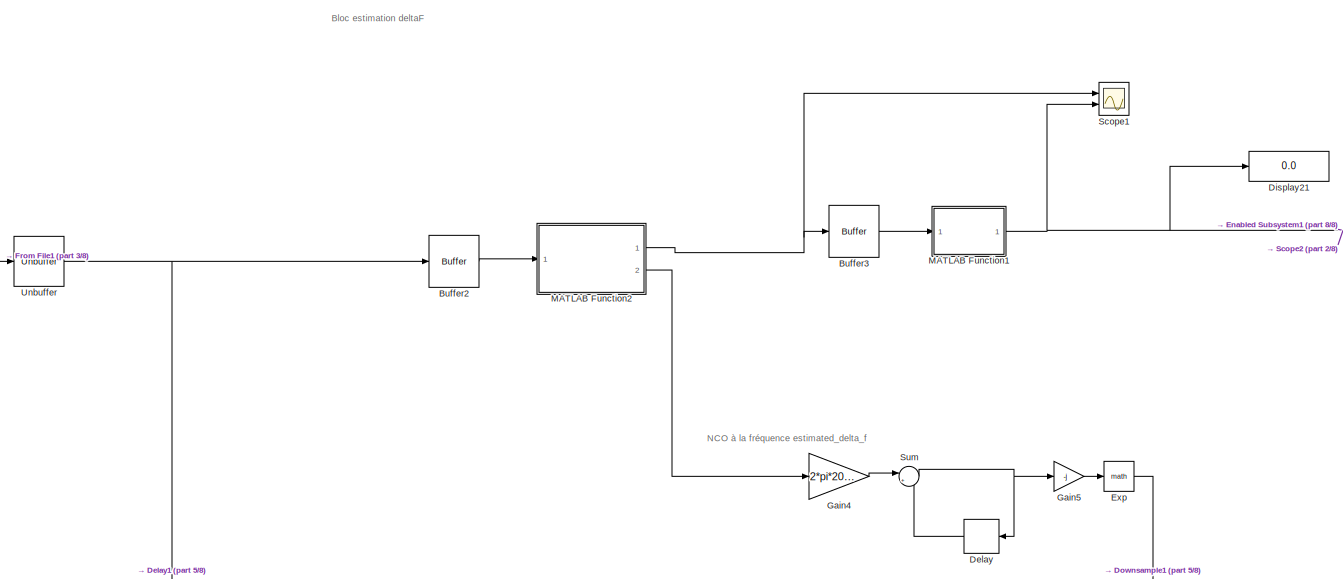
[diagram: root canvas - part 1/8, top left region]
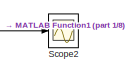
[diagram: root canvas - part 2/8, top left region]
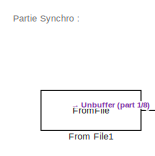
[diagram: root canvas - part 3/8, top left region]
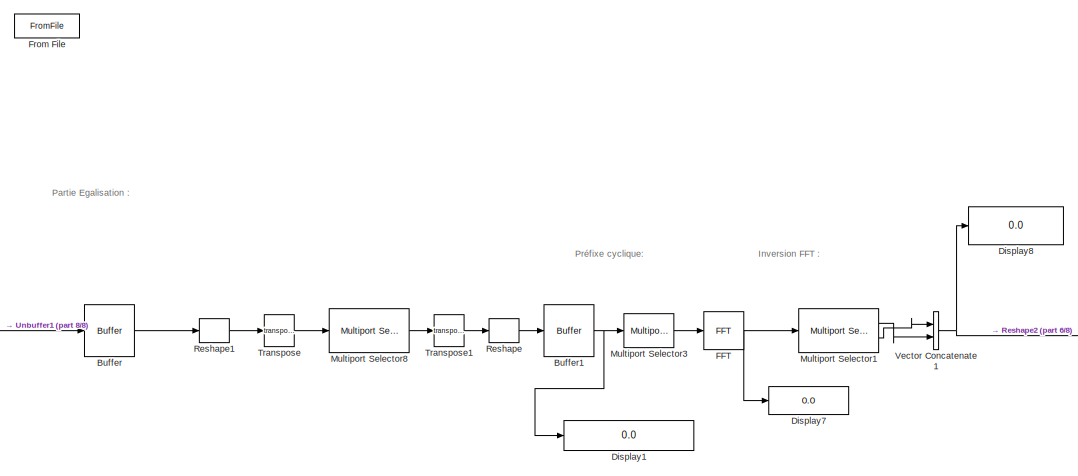
[diagram: root canvas - part 4/8, bottom center region]
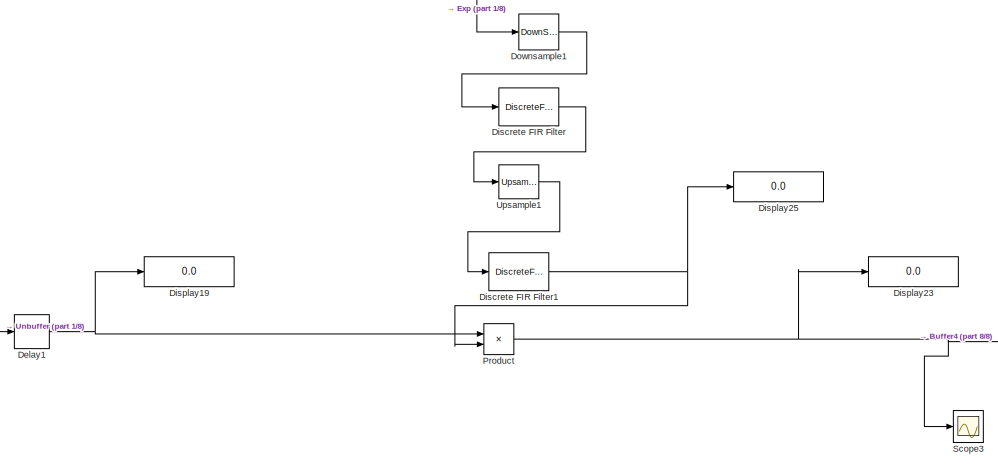
[diagram: root canvas - part 5/8, bottom left region]
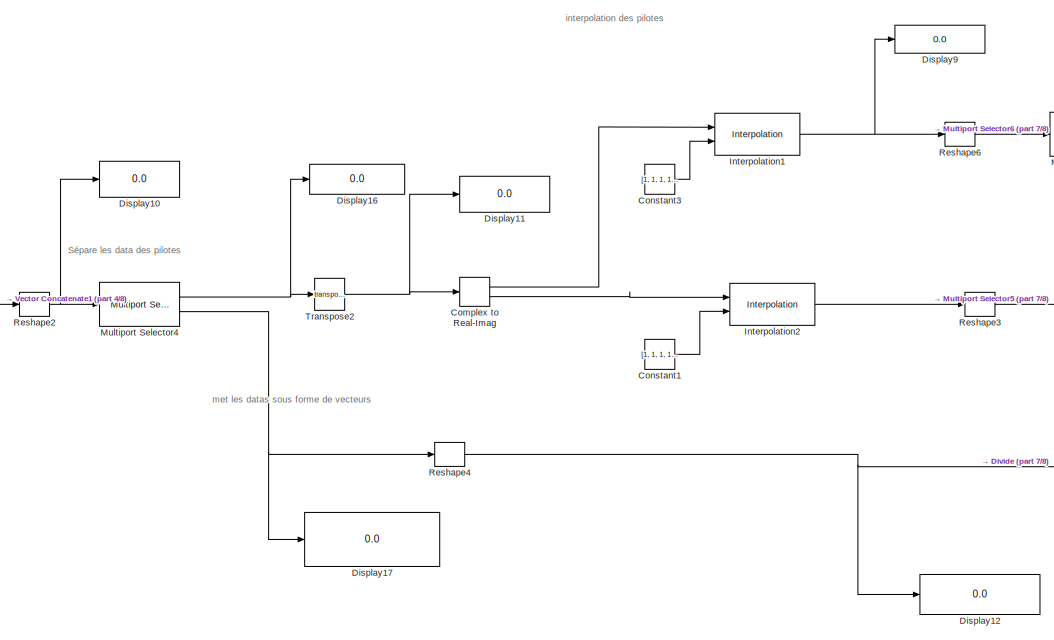
[diagram: root canvas - part 6/8, bottom right region]
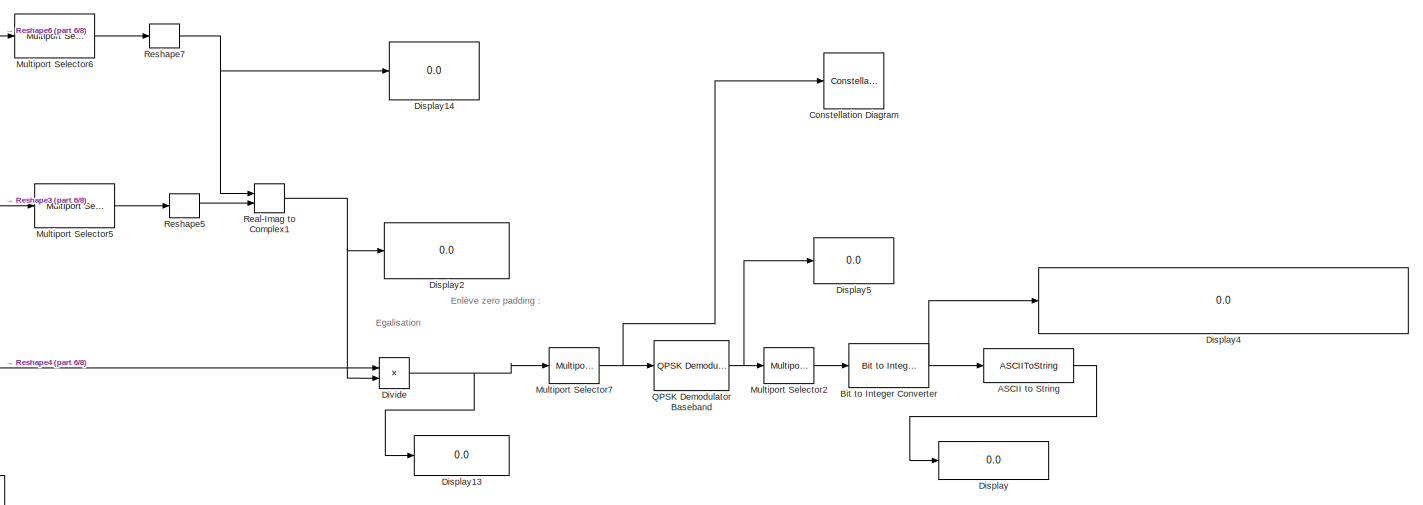
[diagram: root canvas - part 7/8, bottom right region]
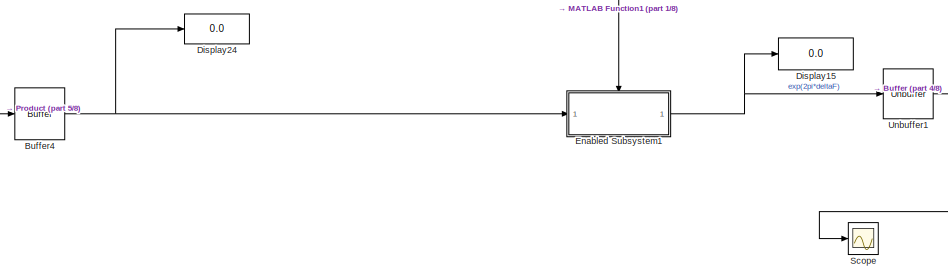
[diagram: root canvas - part 8/8, bottom center region]
MODEL slx_e51fe2e4c90e
KIND model
CONFIG AbsTol = auto
CONFIG EnableMultiTasking = off
CONFIG FixedStep = auto
CONFIG InitFcn = N = 63;\nNtot = N+1;\nNp = 0.25*Ntot;\nDIP = 4;\nTsOFDM=0.0013;\nPrefix = 2;
CONFIG MaxStep = auto
CONFIG MinStep = auto
CONFIG PreLoadFcn = N = 63;\nNtot = N+1;\nNp = 0.25*Ntot;\nDIP = 4;\nTsOFDM=0.0013;\nPrefix = 2;
CONFIG RelTol = 1e-3
CONFIG SampleTimeConstraint = Unconstrained
CONFIG SolverName = VariableStepAuto
CONFIG StartTime = 0.0
CONFIG StopTime = 0.13
BLOCK [ASCIIToString] ASCII to String
BLOCK [Reference] Bit to Integer Converter  REF=commutil2/Bit to Integer
Converter
  Ports = [1, 1]
  SourceBlock = commutil2/Bit to Integer\nConverter
  SourceProductBaseCode = CM
  SourceType = Bit to Integer Converter
BLOCK [Buffer] Buffer
  N = (Ntot+Prefix)*10
  OutputFrames = off
BLOCK [Buffer] Buffer1
  N = Ntot+Prefix
  OutputFrames = off
BLOCK [Buffer] Buffer2
  N = 660
  OutputFrames = off
  V = 659
BLOCK [Buffer] Buffer3
  N = 660
  OutputFrames = off
  V = 659
BLOCK [Buffer] Buffer4
  N = 660
  OutputFrames = off
  V = 659
BLOCK [ComplexToRealImag] Complex to Real-Imag
  Ports = [1, 2]
BLOCK [Constant] Constant1
  Value = [1, 1, 1, 1:0.25:16]
BLOCK [Constant] Constant3
  Value = [1, 1, 1, 1:0.25:16]
BLOCK [ConstellationDiagram] Constellation Diagram
  Ports = [1]
  ScopeSpecificationString = comm.scopes.ConstellationDiagramBlockCfg('CurrentConfiguration', extmgr.ConfigurationSet(extmgr.Configuration('Core','General UI',true),extmgr.Configuration('Core','Source UI',true),extmgr.Configuration('Sources','WiredSimulink',true),extmgr.Configuration('Sources','Simulink',false),extmgr.Configuration('Sources','File',false),extmgr.Configuration('Sources','Workspace',false),extmgr.Configuration(...<+1657ch>
BLOCK [Delay] Delay
  DelayLength = 1
  InputPortMap = u0
  NameLocation = top
  Ports = [1, 1]
BLOCK [Delay] Delay1
  DelayLength = 67
  InputPortMap = u0
  Ports = [1, 1]
  SampleTime = 20*10^(-6)
BLOCK [DiscreteFir] Discrete FIR Filter
  Coefficients = (1/50)*ones(1,50)
  InputPortMap = u0
  OutputPortMap = o0
  Ports = [1, 1]
BLOCK [DiscreteFir] Discrete FIR Filter1
  Coefficients = ones(1,660)
  InputPortMap = u0
  OutputPortMap = o0
  Ports = [1, 1]
BLOCK [Display] Display
  Decimation = 1
  Ports = [1]
BLOCK [Display] Display1
  Decimation = 1
  Ports = [1]
BLOCK [Display] Display10
  Decimation = 1
  Ports = [1]
BLOCK [Display] Display11
  Decimation = 1
  Ports = [1]
BLOCK [Display] Display12
  Decimation = 1
  Ports = [1]
BLOCK [Display] Display13
  Decimation = 1
  Ports = [1]
BLOCK [Display] Display14
  Decimation = 1
  Ports = [1]
BLOCK [Display] Display15
  Decimation = 1
  Ports = [1]
BLOCK [Display] Display16
  Decimation = 1
  Ports = [1]
BLOCK [Display] Display17
  Decimation = 1
  Ports = [1]
BLOCK [Display] Display19
  Decimation = 1
  Ports = [1]
BLOCK [Display] Display2
  Decimation = 1
  Ports = [1]
BLOCK [Display] Display21
  Decimation = 1
  Ports = [1]
BLOCK [Display] Display23
  Decimation = 1
  Ports = [1]
BLOCK [Display] Display24
  Decimation = 1
  Ports = [1]
BLOCK [Display] Display25
  Decimation = 1
  Ports = [1]
BLOCK [Display] Display4
  Decimation = 1
  Ports = [1]
BLOCK [Display] Display5
  Decimation = 1
  Ports = [1]
BLOCK [Display] Display7
  Decimation = 1
  Ports = [1]
BLOCK [Display] Display8
  Decimation = 1
  Ports = [1]
BLOCK [Display] Display9
  Decimation = 1
  Ports = [1]
BLOCK [Product] Divide
  Inputs = */
  Ports = [2, 1]
BLOCK [DownSample] Downsample1
  InputProcessing = Elements as channels (sample based)
  N = 660
  RateOptions = Allow multirate processing
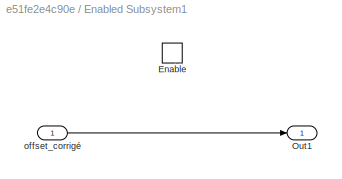
BLOCK [SubSystem] Enabled Subsystem1
  Ports = [1, 1, 1]
  RequestExecContextInheritance = off
  TreatAsAtomicUnit = on
BLOCK [EnablePort] Enabled Subsystem1/Enable
  Ports = []
  PropagateVarSize = During execution
BLOCK [Outport] Enabled Subsystem1/Out1
BLOCK [Inport] Enabled Subsystem1/offset_corrigé
BLOCK [Math] Exp
  Ports = [1, 1]
BLOCK [Reference] FFT  REF=dspxfrm3/FFT
  Ports = [1, 1]
  SourceBlock = dspxfrm3/FFT
  SourceProductBaseCode = DS
  SourceType = FFT
BLOCK [FromFile] From File
  Commented = on
  ExtrapolationAfterLastDataPoint = Ground value
  FileName = samples_message.mat
  SampleTime = 20e-6
BLOCK [FromFile] From File1
  ExtrapolationAfterLastDataPoint = Ground value
  FileName = samples_message.mat
  SampleTime = 50*10^(-9)
BLOCK [Gain] Gain4
  Gain = 2*pi*20*10^(-6)
BLOCK [Gain] Gain5
  Gain = -j
BLOCK [Reference] Interpolation1  REF=dspsigops/Interpolation
  Ports = [2, 1]
  SourceBlock = dspsigops/Interpolation
  SourceProductBaseCode = DS
  SourceType = Interpolation
BLOCK [Reference] Interpolation2  REF=dspsigops/Interpolation
  Ports = [2, 1]
  SourceBlock = dspsigops/Interpolation
  SourceProductBaseCode = DS
  SourceType = Interpolation
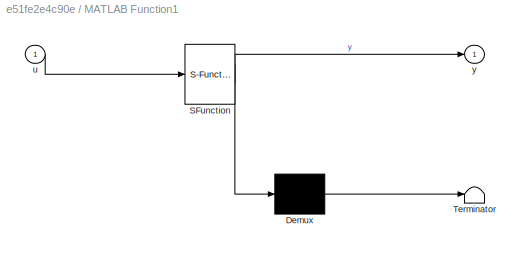
BLOCK [SubSystem] MATLAB Function1
  ErrorFcn = Stateflow.Translate.translate
  PermitHierarchicalResolution = ExplicitOnly
  Ports = [1, 1]
  RequestExecContextInheritance = off
  SFBlockType = MATLAB Function
  TreatAsAtomicUnit = on
BLOCK [Demux] MATLAB Function1/ Demux 
  Outputs = 1
  Ports = [1, 1]
BLOCK [S-Function] MATLAB Function1/ SFunction 
  EnableBusSupport = on
  FunctionName = sf_sfun
  PortCounts = [1 2]
  Ports = [1, 2]
  SFcnIsStateOwnerBlock = off
  SFunctionDeploymentMode = off
  Tag = Stateflow S-Function 1
BLOCK [Terminator] MATLAB Function1/ Terminator 
BLOCK [Inport] MATLAB Function1/u
BLOCK [Outport] MATLAB Function1/y
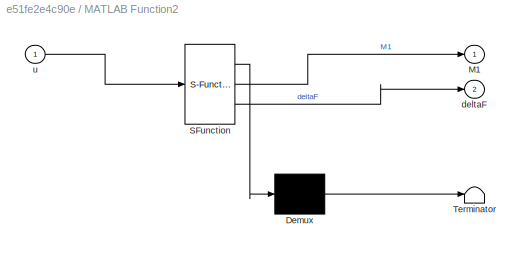
BLOCK [SubSystem] MATLAB Function2
  ErrorFcn = Stateflow.Translate.translate
  PermitHierarchicalResolution = ExplicitOnly
  Ports = [1, 2]
  RequestExecContextInheritance = off
  SFBlockType = MATLAB Function
  TreatAsAtomicUnit = on
BLOCK [Demux] MATLAB Function2/ Demux 
  Outputs = 1
  Ports = [1, 1]
BLOCK [S-Function] MATLAB Function2/ SFunction 
  EnableBusSupport = on
  FunctionName = sf_sfun
  PortCounts = [1 3]
  Ports = [1, 3]
  SFcnIsStateOwnerBlock = off
  SFunctionDeploymentMode = off
  Tag = Stateflow S-Function 3
BLOCK [Terminator] MATLAB Function2/ Terminator 
BLOCK [Outport] MATLAB Function2/M1
BLOCK [Outport] MATLAB Function2/deltaF
  Port = 2
BLOCK [Inport] MATLAB Function2/u
BLOCK [Reference] Multiport Selector1  REF=dspindex/Multiport
Selector
  Ports = [1, 2]
  SourceBlock = dspindex/Multiport\nSelector
  SourceProductBaseCode = DS
  SourceType = Multiport Selector
BLOCK [Reference] Multiport Selector2  REF=dspindex/Multiport
Selector
  Ports = [1, 1]
  SourceBlock = dspindex/Multiport\nSelector
  SourceProductBaseCode = DS
  SourceType = Multiport Selector
BLOCK [Reference] Multiport Selector3  REF=dspindex/Multiport
Selector
  Ports = [1, 1]
  SourceBlock = dspindex/Multiport\nSelector
  SourceProductBaseCode = DS
  SourceType = Multiport Selector
BLOCK [Reference] Multiport Selector4  REF=dspindex/Multiport
Selector
  Ports = [1, 2]
  SourceBlock = dspindex/Multiport\nSelector
  SourceProductBaseCode = DS
  SourceType = Multiport Selector
BLOCK [Reference] Multiport Selector5  REF=dspindex/Multiport
Selector
  Ports = [1, 1]
  SourceBlock = dspindex/Multiport\nSelector
  SourceProductBaseCode = DS
  SourceType = Multiport Selector
BLOCK [Reference] Multiport Selector6  REF=dspindex/Multiport
Selector
  Ports = [1, 1]
  SourceBlock = dspindex/Multiport\nSelector
  SourceProductBaseCode = DS
  SourceType = Multiport Selector
BLOCK [Reference] Multiport Selector7  REF=dspindex/Multiport
Selector
  Ports = [1, 1]
  SourceBlock = dspindex/Multiport\nSelector
  SourceProductBaseCode = DS
  SourceType = Multiport Selector
BLOCK [Reference] Multiport Selector8  REF=dspindex/Multiport
Selector
  Ports = [1, 1]
  SourceBlock = dspindex/Multiport\nSelector
  SourceProductBaseCode = DS
  SourceType = Multiport Selector
BLOCK [Product] Product
  Ports = [2, 1]
BLOCK [Reference] QPSK Demodulator Baseband  REF=commdigbbndpm3/QPSK
Demodulator
Baseband
  Ports = [1, 1]
  SourceBlock = commdigbbndpm3/QPSK\nDemodulator\nBaseband
  SourceProductBaseCode = CM
  SourceType = QPSK Demodulator Baseband
BLOCK [RealImagToComplex] Real-Imag to Complex1
  Ports = [2, 1]
BLOCK [Reshape] Reshape
  Ports = [1, 1]
BLOCK [Reshape] Reshape1
  OutputDimensionality = Customize
  OutputDimensions = [Ntot+2, 10]
  Ports = [1, 1]
BLOCK [Reshape] Reshape2
  OutputDimensionality = Customize
  OutputDimensions = [DIP,Np]
  Ports = [1, 1]
BLOCK [Reshape] Reshape3
  OutputDimensionality = Customize
  OutputDimensions = [DIP, Np]
  Ports = [1, 1]
BLOCK [Reshape] Reshape4
  OutputDimensions = [32, 3]
  Ports = [1, 1]
BLOCK [Reshape] Reshape5
  OutputDimensions = [32, 3]
  Ports = [1, 1]
BLOCK [Reshape] Reshape6
  OutputDimensionality = Customize
  OutputDimensions = [DIP, Np]
  Ports = [1, 1]
BLOCK [Reshape] Reshape7
  OutputDimensions = [32, 3]
  Ports = [1, 1]
BLOCK [Scope] Scope
  Floating = off
  NumInputPorts = 1
  Ports = [1]
  ScopeSpecificationString = Simulink.scopes.TimeScopeBlockCfg('CurrentConfiguration', extmgr.ConfigurationSet(extmgr.Configuration('Core','General UI',true),extmgr.Configuration('Core','Source UI',true),extmgr.Configuration('Sources','WiredSimulink',true,'DataLoggingVariableName','ScopeData1'),extmgr.Configuration('Visuals','Time Domain',true,'SerializedDisplays',{struct('MinYLimReal','-0.00097','MaxYLimReal','0.00089','YLab...<+1492ch>
BLOCK [Scope] Scope1
  Floating = off
  NumInputPorts = 2
  Ports = [2]
  ScopeSpecificationString = Simulink.scopes.TimeScopeBlockCfg('CurrentConfiguration', extmgr.ConfigurationSet(extmgr.Configuration('Core','General UI',true),extmgr.Configuration('Core','Source UI',true),extmgr.Configuration('Sources','WiredSimulink',true,'DataLoggingVariableName','ScopeData2'),extmgr.Configuration('Visuals','Time Domain',true,'PlotType','Stem','SerializedDisplays',{struct('MinYLimReal','-0.11484','MaxYLimRea...<+2108ch>
BLOCK [Scope] Scope2
  Floating = off
  NumInputPorts = 1
  Ports = [1]
  ScopeSpecificationString = Simulink.scopes.TimeScopeBlockCfg('CurrentConfiguration', extmgr.ConfigurationSet(extmgr.Configuration('Core','General UI',true),extmgr.Configuration('Core','Source UI',true),extmgr.Configuration('Sources','WiredSimulink',true),extmgr.Configuration('Visuals','Time Domain',true,'PlotType','Stem','SerializedDisplays',{struct('MinYLimReal','-1.00000','MaxYLimReal','1.00000','YLabelReal','','MinYLimMa...<+1434ch>
BLOCK [Scope] Scope3
  Floating = off
  NumInputPorts = 1
  Ports = [1]
  ScopeSpecificationString = Simulink.scopes.TimeScopeBlockCfg('CurrentConfiguration', extmgr.ConfigurationSet(extmgr.Configuration('Core','General UI',true),extmgr.Configuration('Core','Source UI',true),extmgr.Configuration('Sources','WiredSimulink',true,'DataLoggingVariableName','ScopeData2'),extmgr.Configuration('Visuals','Time Domain',true,'SerializedDisplays',{struct('MinYLimReal','-30.51966','MaxYLimReal','47.05955','YL...<+1465ch>
BLOCK [Sum] Sum
  Inputs = |++
  Ports = [2, 1]
BLOCK [Math] Transpose
  Operator = transpose
  Ports = [1, 1]
BLOCK [Math] Transpose1
  Operator = transpose
  Ports = [1, 1]
BLOCK [Math] Transpose2
  Operator = transpose
  Ports = [1, 1]
BLOCK [Unbuffer] Unbuffer
  Ports = [1, 1]
BLOCK [Unbuffer] Unbuffer1
  Ports = [1, 1]
BLOCK [Reference] Upsample1  REF=dspsigops/Upsample
  Ports = [1, 1]
  SourceBlock = dspsigops/Upsample
  SourceProductBaseCode = DS
  SourceType = Upsample
  UserDataPersistent = on
BLOCK [Concatenate] Vector Concatenate1
  Ports = [2, 1]
ANNOTATION (root): Partie Egalisation :
ANNOTATION (root): Partie Synchro :
ANNOTATION (root): Egalisation
ANNOTATION (root): Sépare les data des pilotes
ANNOTATION (root): interpolation des pilotes
ANNOTATION (root): met les datas sous forme de vecteurs
ANNOTATION (root): Enlève zero padding :
ANNOTATION (root): Inversion FFT :
ANNOTATION (root): Préfixe cyclique:
ANNOTATION (root): Bloc estimation deltaF
ANNOTATION (root): NCO à la fréquence estimated_delta_f
LINE ASCII to String:1 -> Display:1
NET Bit to Integer Converter:1 -> ASCII to String:1, Display4:1
NET Buffer1:1 -> Display1:1, Multiport Selector3:1
LINE Buffer2:1 -> MATLAB Function2:1
LINE Buffer3:1 -> MATLAB Function1:1
NET Buffer4:1 -> Display24:1, Enabled Subsystem1:1
LINE Buffer:1 -> Reshape1:1
LINE Complex to Real-Imag:1 -> Interpolation1:1
LINE Complex to Real-Imag:2 -> Interpolation2:1
LINE Constant1:1 -> Interpolation2:2
LINE Constant3:1 -> Interpolation1:2
NET Delay1:1 -> Display19:1, Product:1
LINE Delay:1 -> Sum:2
NET Discrete FIR Filter1:1 -> Display25:1, Product:2
LINE Discrete FIR Filter:1 -> Upsample1:1
NET Divide:1 -> Display13:1, Multiport Selector7:1
LINE Downsample1:1 -> Discrete FIR Filter:1
LINE Enabled Subsystem1/offset_corrigé:1 -> Enabled Subsystem1/Out1:1
NET Enabled Subsystem1:1 -> Display15:1, Unbuffer1:1
LINE Exp:1 -> Downsample1:1
NET FFT:1 -> Display7:1, Multiport Selector1:1
LINE From File1:1 -> Unbuffer:1
LINE Gain4:1 -> Sum:1
LINE Gain5:1 -> Exp:1
NET Interpolation1:1 -> Display9:1, Reshape6:1
LINE Interpolation2:1 -> Reshape3:1
NET MATLAB Function1:1 -> Display21:1, Enabled Subsystem1:enable, Scope1:2, Scope2:1
NET MATLAB Function2:1 -> Buffer3:1, Scope1:1
LINE MATLAB Function2:2 -> Gain4:1
LINE Multiport Selector1:1 -> Vector Concatenate1:2
LINE Multiport Selector1:2 -> Vector Concatenate1:1
LINE Multiport Selector2:1 -> Bit to Integer Converter:1
LINE Multiport Selector3:1 -> FFT:1
NET Multiport Selector4:1 -> Display16:1, Transpose2:1
NET Multiport Selector4:2 -> Display17:1, Reshape4:1
LINE Multiport Selector5:1 -> Reshape5:1
LINE Multiport Selector6:1 -> Reshape7:1
NET Multiport Selector7:1 -> Constellation Diagram:1, QPSK Demodulator Baseband:1
LINE Multiport Selector8:1 -> Transpose1:1
NET Product:1 -> Buffer4:1, Display23:1, Scope3:1
NET QPSK Demodulator Baseband:1 -> Display5:1, Multiport Selector2:1
NET Real-Imag to Complex1:1 -> Display2:1, Divide:2
LINE Reshape1:1 -> Transpose:1
NET Reshape2:1 -> Display10:1, Multiport Selector4:1
LINE Reshape3:1 -> Multiport Selector5:1
NET Reshape4:1 -> Display12:1, Divide:1
LINE Reshape5:1 -> Real-Imag to Complex1:2
LINE Reshape6:1 -> Multiport Selector6:1
NET Reshape7:1 -> Display14:1, Real-Imag to Complex1:1
LINE Reshape:1 -> Buffer1:1
NET Sum:1 -> Delay:1, Gain5:1
LINE Transpose1:1 -> Reshape:1
NET Transpose2:1 -> Complex to Real-Imag:1, Display11:1
LINE Transpose:1 -> Multiport Selector8:1
NET Unbuffer1:1 -> Buffer:1, Scope:1
NET Unbuffer:1 -> Buffer2:1, Delay1:1
LINE Upsample1:1 -> Discrete FIR Filter1:1
NET Vector Concatenate1:1 -> Display8:1, Reshape2:1
note: NET lines group one-source signal fan-out (src -> all destinations, sorted); 1:1 wires keep LINE
CHART MATLAB Function2 states=1 transitions=1
  STATE_LABEL 'eML_blk_kernel()'
  STATE_LABEL 'SCRIPT:\nfunction [M1, deltaF] = fcn(u)\n\nT = 20*10^(-6)*660;\nL = 330;\nNg = 2;\nN=660;\nDMAX = 660;\nM = 0;\nR = 0;\nM1 = 0;\nMf = ones(3);\nP = complex(0,0);\nRf = 0;\n\n    for m = 1:L\n        P = P + conj(u(m))*u(m+L);\n    end\n    M = abs(P)^2/R^2;\n    for m = 1:N\n        Rf = Rf+(1/2)*(abs(u(m)))^2;\n    end\n    \n    %\n    for d = 1:3\n    Mf(d) = abs(P)^2/Rf^2;\n    end \n    for k = -Ng:0\n        M1 = M1 + ...<+135ch>'
CHART MATLAB Function1 states=1 transitions=1
  STATE_LABEL 'eML_blk_kernel()'
  STATE_LABEL 'SCRIPT:\nfunction y = fcn(u)\nmax= u(1);\ny=0;\nfor i = 4:657\n    if(max<u(i))\n        max=u(i);\n        if 0.9<max\n            if  u(i-3)<max && u(i-2)<max && u(i-1)<max && u(i+1)<=max && u(i+2)<=max && u(i+3)<=max \n                y=1;\n                max = 0;\n            else\n                y=0;\n            end\n\n        end\n    end\n\n\n\n\nend'
CHART  states=0 transitions=0
CHART  states=0 transitions=0
